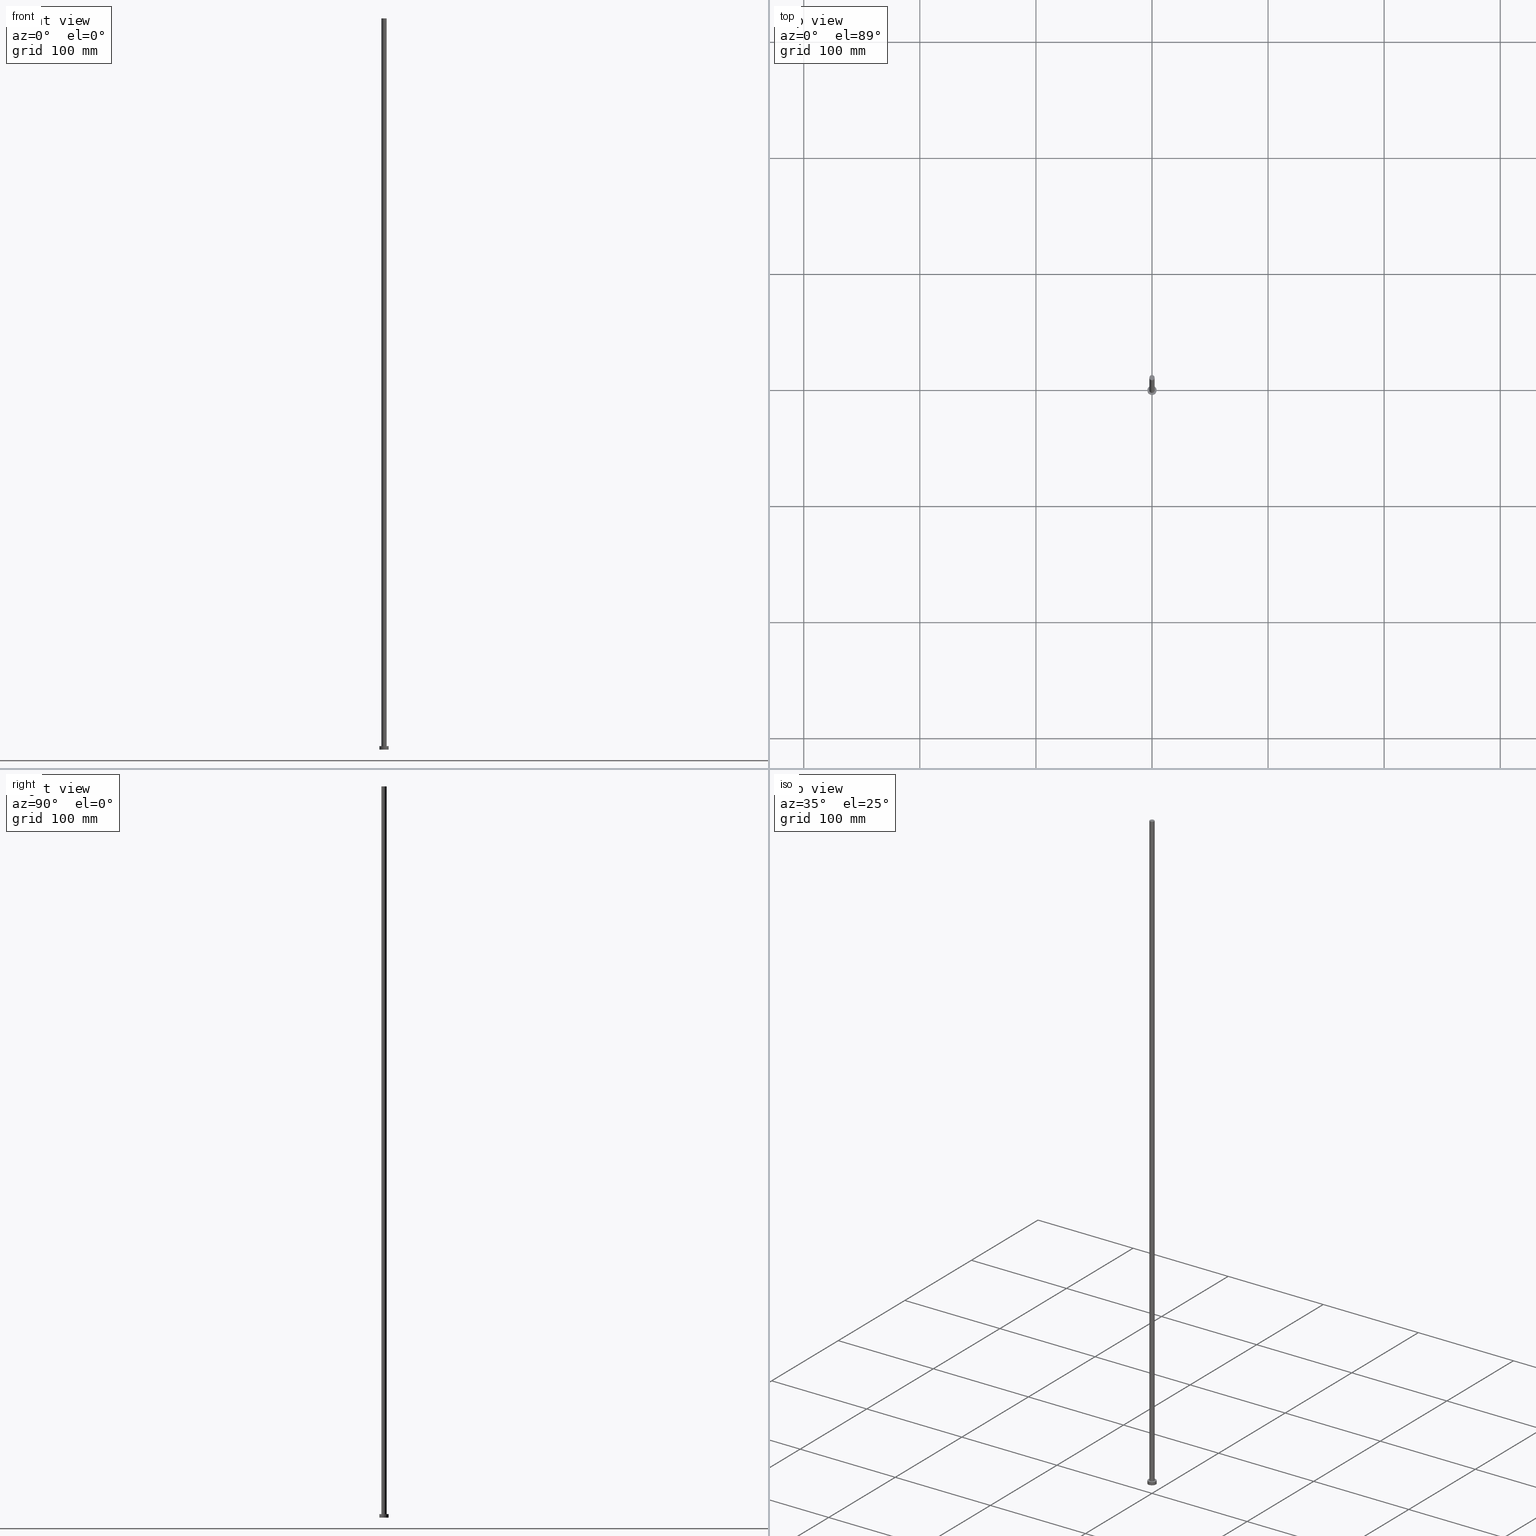
[diagram: canonical four-view strip — front | top / right | iso, engineering-drawing reading convention]
A machine part, canonical four-view strip (front | top / right | iso — engineering-drawing reading convention). The complete STEP part file that produces these views, byte-faithful:
ISO-10303-21;
HEADER;
FILE_DESCRIPTION (( 'STEP AP203' ),
    '1' );
FILE_NAME ('1215.STEP',
    '2023-02-12T12:32:18',
    ( '' ),
    ( '' ),
    'SwSTEP 2.0',
    'SolidWorks 2019',
    '' );
FILE_SCHEMA (( 'CONFIG_CONTROL_DESIGN' ));
ENDSEC;

DATA;
#1 = DIRECTION ( 'NONE',  ( 0.000000000000000000, 0.000000000000000000, 1.000000000000000000 ) ) ;
#2 = CIRCLE ( 'NONE', #154, 2.250000000000000000 ) ;
#3 = CARTESIAN_POINT ( 'NONE',  ( 0.000000000000000000, 0.000000000000000000, 630.0000000000000000 ) ) ;
#4 = APPLICATION_CONTEXT ( 'configuration controlled 3d designs of mechanical parts and assemblies' ) ;
#5 = ORIENTED_EDGE ( 'NONE', *, *, #18, .F. ) ;
#6 = EDGE_LOOP ( 'NONE', ( #5, #234, #204, #21 ) ) ;
#7 = DATE_TIME_ROLE ( 'creation_date' ) ;
#8 = CC_DESIGN_SECURITY_CLASSIFICATION ( #96, ( #150 ) ) ;
#9 = DIRECTION ( 'NONE',  ( 1.000000000000000000, 0.000000000000000000, 0.000000000000000000 ) ) ;
#10 = DIRECTION ( 'NONE',  ( 1.000000000000000000, 0.000000000000000000, 0.000000000000000000 ) ) ;
#11 = EDGE_CURVE ( 'NONE', #79, #48, #99, .T. ) ;
#12 = DIRECTION ( 'NONE',  ( 0.000000000000000000, 0.000000000000000000, 1.000000000000000000 ) ) ;
#13 = CARTESIAN_POINT ( 'NONE',  ( 0.000000000000000000, 0.000000000000000000, 3.000000000000000000 ) ) ;
#14 = LINE ( 'NONE', #176, #188 ) ;
#15 = ORIENTED_EDGE ( 'NONE', *, *, #117, .T. ) ;
#16 = CARTESIAN_POINT ( 'NONE',  ( 0.000000000000000000, 0.000000000000000000, 630.0000000000000000 ) ) ;
#17 = MANIFOLD_SOLID_BREP ( 'P�idat vysunut�m3', #90 ) ;
#18 = EDGE_CURVE ( 'NONE', #79, #158, #14, .T. ) ;
#19 = DIRECTION ( 'NONE',  ( 1.000000000000000000, 0.000000000000000000, 0.000000000000000000 ) ) ;
#20 = FACE_OUTER_BOUND ( 'NONE', #69, .T. ) ;
#21 = ORIENTED_EDGE ( 'NONE', *, *, #28, .T. ) ;
#22 = ORIENTED_EDGE ( 'NONE', *, *, #18, .T. ) ;
#23 = PERSON_AND_ORGANIZATION ( #107, #104 ) ;
#24 = ORIENTED_EDGE ( 'NONE', *, *, #63, .T. ) ;
#25 = AXIS2_PLACEMENT_3D ( 'NONE', #67, #146, #223 ) ;
#26 =( NAMED_UNIT ( * ) SI_UNIT ( $, .STERADIAN. ) SOLID_ANGLE_UNIT ( ) );
#27 = APPROVAL_STATUS ( 'not_yet_approved' ) ;
#28 = EDGE_CURVE ( 'NONE', #227, #158, #83, .T. ) ;
#29 = DATE_AND_TIME ( #230, #190 ) ;
#30 = EDGE_CURVE ( 'NONE', #131, #255, #2, .T. ) ;
#31 = PERSON_AND_ORGANIZATION_ROLE ( 'classification_officer' ) ;
#32 = FACE_OUTER_BOUND ( 'NONE', #201, .T. ) ;
#33 =( GEOMETRIC_REPRESENTATION_CONTEXT ( 3 ) GLOBAL_UNCERTAINTY_ASSIGNED_CONTEXT ( ( #235 ) ) GLOBAL_UNIT_ASSIGNED_CONTEXT ( ( #68, #47, #26 ) ) REPRESENTATION_CONTEXT ( 'NONE', 'WORKASPACE' ) );
#34 = APPROVAL_STATUS ( 'not_yet_approved' ) ;
#35 = CARTESIAN_POINT ( 'NONE',  ( -4.000000000000000000, 0.000000000000000000, 3.000000000000000000 ) ) ;
#36 = COORDINATED_UNIVERSAL_TIME_OFFSET ( 1, 0, .AHEAD. ) ;
#37 = ORIENTED_EDGE ( 'NONE', *, *, #251, .T. ) ;
#38 = CARTESIAN_POINT ( 'NONE',  ( 0.000000000000000000, 0.000000000000000000, 630.0000000000000000 ) ) ;
#39 = CARTESIAN_POINT ( 'NONE',  ( 0.000000000000000000, 0.000000000000000000, 3.000000000000000000 ) ) ;
#40 = DIRECTION ( 'NONE',  ( 1.000000000000000000, 0.000000000000000000, -0.000000000000000000 ) ) ;
#41 = ADVANCED_BREP_SHAPE_REPRESENTATION ( '1215', ( #17, #214 ), #33 ) ;
#42 = LINE ( 'NONE', #35, #240 ) ;
#43 = EDGE_LOOP ( 'NONE', ( #110, #22, #15, #114 ) ) ;
#44 = APPROVAL ( #27, 'NEUR�EN�' ) ;
#45 = CALENDAR_DATE ( 2023, 12, 2 ) ;
#46 = AXIS2_PLACEMENT_3D ( 'NONE', #39, #220, #194 ) ;
#47 =( NAMED_UNIT ( * ) PLANE_ANGLE_UNIT ( ) SI_UNIT ( $, .RADIAN. ) );
#48 = VERTEX_POINT ( 'NONE', #218 ) ;
#49 = AXIS2_PLACEMENT_3D ( 'NONE', #38, #12, #55 ) ;
#50 = ORIENTED_EDGE ( 'NONE', *, *, #162, .T. ) ;
#51 = SECURITY_CLASSIFICATION_LEVEL ( 'unclassified' ) ;
#52 = APPROVAL_STATUS ( 'not_yet_approved' ) ;
#53 = APPROVAL_DATE_TIME ( #29, #138 ) ;
#54 = ADVANCED_FACE ( 'NONE', ( #124 ), #197, .T. ) ;
#55 = DIRECTION ( 'NONE',  ( 1.000000000000000000, 0.000000000000000000, -0.000000000000000000 ) ) ;
#56 = CIRCLE ( 'NONE', #143, 2.250000000000000000 ) ;
#57 = APPROVAL_PERSON_ORGANIZATION ( #89, #44, #168 ) ;
#58 = ORIENTED_EDGE ( 'NONE', *, *, #11, .T. ) ;
#59 = ORIENTED_EDGE ( 'NONE', *, *, #189, .F. ) ;
#60 = DIRECTION ( 'NONE',  ( 0.000000000000000000, 0.000000000000000000, 1.000000000000000000 ) ) ;
#61 = EDGE_LOOP ( 'NONE', ( #59, #116, #179, #37 ) ) ;
#62 = DIRECTION ( 'NONE',  ( -1.000000000000000000, 0.000000000000000000, 0.000000000000000000 ) ) ;
#63 = EDGE_CURVE ( 'NONE', #255, #131, #56, .T. ) ;
#64 = CARTESIAN_POINT ( 'NONE',  ( -2.250000000000000000, 0.000000000000000000, 3.000000000000000000 ) ) ;
#65 = DIRECTION ( 'NONE',  ( 1.000000000000000000, 0.000000000000000000, 0.000000000000000000 ) ) ;
#66 = CARTESIAN_POINT ( 'NONE',  ( 0.000000000000000000, 0.000000000000000000, 630.0000000000000000 ) ) ;
#67 = CARTESIAN_POINT ( 'NONE',  ( 0.000000000000000000, 0.000000000000000000, 0.000000000000000000 ) ) ;
#68 =( LENGTH_UNIT ( ) NAMED_UNIT ( * ) SI_UNIT ( .MILLI., .METRE. ) );
#69 = EDGE_LOOP ( 'NONE', ( #50, #58 ) ) ;
#70 = APPROVAL_DATE_TIME ( #93, #44 ) ;
#71 = CIRCLE ( 'NONE', #224, 2.250000000000000000 ) ;
#72 = FACE_OUTER_BOUND ( 'NONE', #43, .T. ) ;
#73 = CYLINDRICAL_SURFACE ( 'NONE', #84, 2.250000000000000000 ) ;
#74 = VECTOR ( 'NONE', #180, 1000.000000000000000 ) ;
#75 = LOCAL_TIME ( 13, 32, 18.00000000000000000, #172 ) ;
#76 = DIRECTION ( 'NONE',  ( 1.000000000000000000, 0.000000000000000000, 0.000000000000000000 ) ) ;
#77 = CARTESIAN_POINT ( 'NONE',  ( 2.250000000000000000, 2.755455298081544285E-16, 3.000000000000000000 ) ) ;
#78 = ADVANCED_FACE ( 'NONE', ( #85 ), #127, .F. ) ;
#79 = VERTEX_POINT ( 'NONE', #144 ) ;
#80 = PRODUCT_DEFINITION_SHAPE ( 'NONE', 'NONE',  #92 ) ;
#81 = CYLINDRICAL_SURFACE ( 'NONE', #210, 4.000000000000000000 ) ;
#82 = LINE ( 'NONE', #109, #74 ) ;
#83 = CIRCLE ( 'NONE', #228, 4.000000000000000000 ) ;
#84 = AXIS2_PLACEMENT_3D ( 'NONE', #66, #139, #145 ) ;
#85 = FACE_OUTER_BOUND ( 'NONE', #159, .T. ) ;
#86 = PERSON_AND_ORGANIZATION ( #107, #104 ) ;
#87 = CC_DESIGN_DATE_AND_TIME_ASSIGNMENT ( #174, #137, ( #96 ) ) ;
#88 = ORIENTED_EDGE ( 'NONE', *, *, #252, .F. ) ;
#89 = PERSON_AND_ORGANIZATION ( #107, #104 ) ;
#90 = CLOSED_SHELL ( 'NONE', ( #198, #242, #98, #148, #78, #54, #209 ) ) ;
#91 = EDGE_LOOP ( 'NONE', ( #205, #161, #212, #88 ) ) ;
#92 = PRODUCT_DEFINITION ( 'NEZN�M�', '', #150, #151 ) ;
#93 = DATE_AND_TIME ( #170, #208 ) ;
#94 = CALENDAR_DATE ( 2023, 12, 2 ) ;
#95 = AXIS2_PLACEMENT_3D ( 'NONE', #238, #60, #126 ) ;
#96 = SECURITY_CLASSIFICATION ( '', '', #51 ) ;
#97 = CALENDAR_DATE ( 2023, 12, 2 ) ;
#98 = ADVANCED_FACE ( 'NONE', ( #125 ), #81, .T. ) ;
#99 = CIRCLE ( 'NONE', #46, 4.000000000000000000 ) ;
#100 = APPROVAL ( #52, 'NEUR�EN�' ) ;
#101 = PERSON_AND_ORGANIZATION ( #107, #104 ) ;
#102 = CARTESIAN_POINT ( 'NONE',  ( -4.000000000000000000, 0.000000000000000000, 0.000000000000000000 ) ) ;
#103 = ORIENTED_EDGE ( 'NONE', *, *, #117, .F. ) ;
#104 = ORGANIZATION ( 'NEUR�EN�', 'NEUR�EN�', '' ) ;
#105 = DIRECTION ( 'NONE',  ( -0.000000000000000000, -0.000000000000000000, -1.000000000000000000 ) ) ;
#106 = CARTESIAN_POINT ( 'NONE',  ( 2.250000000000000000, 2.755455298081544285E-16, 630.0000000000000000 ) ) ;
#107 = PERSON ( 'NEUR�EN�', 'NEUR�EN�', 'NEUR�EN�', ('NEUR�EN�'), ('NEUR�EN�'), ('NEUR�EN�') ) ;
#108 = CARTESIAN_POINT ( 'NONE',  ( 0.000000000000000000, 0.000000000000000000, 0.000000000000000000 ) ) ;
#109 = CARTESIAN_POINT ( 'NONE',  ( 2.250000000000000000, 2.755455298081544285E-16, 630.0000000000000000 ) ) ;
#110 = ORIENTED_EDGE ( 'NONE', *, *, #11, .F. ) ;
#111 = DIRECTION ( 'NONE',  ( -0.000000000000000000, -0.000000000000000000, -1.000000000000000000 ) ) ;
#112 = EDGE_CURVE ( 'NONE', #196, #177, #121, .T. ) ;
#113 = AXIS2_PLACEMENT_3D ( 'NONE', #108, #1, #40 ) ;
#114 = ORIENTED_EDGE ( 'NONE', *, *, #120, .F. ) ;
#115 = CARTESIAN_POINT ( 'NONE',  ( 0.000000000000000000, 0.000000000000000000, 0.000000000000000000 ) ) ;
#116 = ORIENTED_EDGE ( 'NONE', *, *, #63, .F. ) ;
#117 = EDGE_CURVE ( 'NONE', #158, #227, #186, .T. ) ;
#118 = APPLICATION_PROTOCOL_DEFINITION ( 'international standard', 'config_control_design', 1994, #231 ) ;
#119 = VECTOR ( 'NONE', #111, 1000.000000000000000 ) ;
#120 = EDGE_CURVE ( 'NONE', #48, #227, #42, .T. ) ;
#121 = CIRCLE ( 'NONE', #249, 2.250000000000000000 ) ;
#122 = FACE_OUTER_BOUND ( 'NONE', #91, .T. ) ;
#123 = DIRECTION ( 'NONE',  ( -0.000000000000000000, -0.000000000000000000, -1.000000000000000000 ) ) ;
#124 = FACE_OUTER_BOUND ( 'NONE', #61, .T. ) ;
#125 = FACE_OUTER_BOUND ( 'NONE', #6, .T. ) ;
#126 = DIRECTION ( 'NONE',  ( 1.000000000000000000, 0.000000000000000000, 0.000000000000000000 ) ) ;
#127 = PLANE ( 'NONE',  #113 ) ;
#128 = ORIENTED_EDGE ( 'NONE', *, *, #251, .F. ) ;
#129 = APPROVAL_DATE_TIME ( #243, #100 ) ;
#130 = AXIS2_PLACEMENT_3D ( 'NONE', #216, #123, #192 ) ;
#131 = VERTEX_POINT ( 'NONE', #106 ) ;
#132 = AXIS2_PLACEMENT_3D ( 'NONE', #200, #160, #178 ) ;
#133 = APPLICATION_PROTOCOL_DEFINITION ( 'international standard', 'config_control_design', 1994, #4 ) ;
#134 = LOCAL_TIME ( 13, 32, 18.00000000000000000, #147 ) ;
#135 = PRODUCT_RELATED_PRODUCT_CATEGORY ( 'detail', '', ( #183 ) ) ;
#136 = APPROVAL_ROLE ( '' ) ;
#137 = DATE_TIME_ROLE ( 'classification_date' ) ;
#138 = APPROVAL ( #34, 'NEUR�EN�' ) ;
#139 = DIRECTION ( 'NONE',  ( -0.000000000000000000, -0.000000000000000000, -1.000000000000000000 ) ) ;
#140 = DIRECTION ( 'NONE',  ( 1.000000000000000000, 0.000000000000000000, 0.000000000000000000 ) ) ;
#141 = CARTESIAN_POINT ( 'NONE',  ( 4.000000000000000000, 4.898587196589412829E-16, 0.000000000000000000 ) ) ;
#142 = CARTESIAN_POINT ( 'NONE',  ( 0.000000000000000000, 0.000000000000000000, 630.0000000000000000 ) ) ;
#143 = AXIS2_PLACEMENT_3D ( 'NONE', #142, #219, #19 ) ;
#144 = CARTESIAN_POINT ( 'NONE',  ( 4.000000000000000000, 4.898587196589412829E-16, 3.000000000000000000 ) ) ;
#145 = DIRECTION ( 'NONE',  ( -1.000000000000000000, 0.000000000000000000, 0.000000000000000000 ) ) ;
#146 = DIRECTION ( 'NONE',  ( 0.000000000000000000, 0.000000000000000000, 1.000000000000000000 ) ) ;
#147 = COORDINATED_UNIVERSAL_TIME_OFFSET ( 1, 0, .AHEAD. ) ;
#148 = ADVANCED_FACE ( 'NONE', ( #164, #20 ), #195, .T. ) ;
#149 = ORIENTED_EDGE ( 'NONE', *, *, #28, .F. ) ;
#150 = PRODUCT_DEFINITION_FORMATION_WITH_SPECIFIED_SOURCE ( 'LIBOVOLN�', '', #183, .NOT_KNOWN. ) ;
#151 = DESIGN_CONTEXT ( 'detailed design', #4, 'design' ) ;
#152 = LOCAL_TIME ( 13, 32, 18.00000000000000000, #184 ) ;
#153 = PERSON_AND_ORGANIZATION_ROLE ( 'design_supplier' ) ;
#154 = AXIS2_PLACEMENT_3D ( 'NONE', #3, #199, #140 ) ;
#155 = CC_DESIGN_PERSON_AND_ORGANIZATION_ASSIGNMENT ( #229, #206, ( #92 ) ) ;
#156 = CC_DESIGN_PERSON_AND_ORGANIZATION_ASSIGNMENT ( #215, #31, ( #96 ) ) ;
#157 = DIRECTION ( 'NONE',  ( 0.000000000000000000, 0.000000000000000000, 1.000000000000000000 ) ) ;
#158 = VERTEX_POINT ( 'NONE', #141 ) ;
#159 = EDGE_LOOP ( 'NONE', ( #149, #103 ) ) ;
#160 = DIRECTION ( 'NONE',  ( 0.000000000000000000, 0.000000000000000000, 1.000000000000000000 ) ) ;
#161 = ORIENTED_EDGE ( 'NONE', *, *, #189, .T. ) ;
#162 = EDGE_CURVE ( 'NONE', #48, #79, #207, .T. ) ;
#163 = DIRECTION ( 'NONE',  ( -0.000000000000000000, -0.000000000000000000, -1.000000000000000000 ) ) ;
#164 = FACE_BOUND ( 'NONE', #169, .T. ) ;
#165 = CC_DESIGN_APPROVAL ( #100, ( #92 ) ) ;
#166 = CARTESIAN_POINT ( 'NONE',  ( 0.000000000000000000, 0.000000000000000000, 3.000000000000000000 ) ) ;
#167 = CARTESIAN_POINT ( 'NONE',  ( -2.250000000000000000, 0.000000000000000000, 630.0000000000000000 ) ) ;
#168 = APPROVAL_ROLE ( '' ) ;
#169 = EDGE_LOOP ( 'NONE', ( #128, #217 ) ) ;
#170 = CALENDAR_DATE ( 2023, 12, 2 ) ;
#171 = LINE ( 'NONE', #167, #119 ) ;
#172 = COORDINATED_UNIVERSAL_TIME_OFFSET ( 1, 0, .AHEAD. ) ;
#173 = AXIS2_PLACEMENT_3D ( 'NONE', #16, #105, #62 ) ;
#174 = DATE_AND_TIME ( #97, #75 ) ;
#175 = ORIENTED_EDGE ( 'NONE', *, *, #30, .T. ) ;
#176 = CARTESIAN_POINT ( 'NONE',  ( 4.000000000000000000, 4.898587196589412829E-16, 3.000000000000000000 ) ) ;
#177 = VERTEX_POINT ( 'NONE', #64 ) ;
#178 = DIRECTION ( 'NONE',  ( 1.000000000000000000, 0.000000000000000000, -0.000000000000000000 ) ) ;
#179 = ORIENTED_EDGE ( 'NONE', *, *, #252, .T. ) ;
#180 = DIRECTION ( 'NONE',  ( -0.000000000000000000, -0.000000000000000000, -1.000000000000000000 ) ) ;
#181 = DIRECTION ( 'NONE',  ( 0.000000000000000000, 0.000000000000000000, 1.000000000000000000 ) ) ;
#182 = CC_DESIGN_DATE_AND_TIME_ASSIGNMENT ( #247, #7, ( #92 ) ) ;
#183 = PRODUCT ( '1215', '1215', '', ( #213 ) ) ;
#184 = COORDINATED_UNIVERSAL_TIME_OFFSET ( 1, 0, .AHEAD. ) ;
#185 = PERSON_AND_ORGANIZATION ( #107, #104 ) ;
#186 = CIRCLE ( 'NONE', #25, 4.000000000000000000 ) ;
#187 = PERSON_AND_ORGANIZATION_ROLE ( 'design_owner' ) ;
#188 = VECTOR ( 'NONE', #254, 1000.000000000000000 ) ;
#189 = EDGE_CURVE ( 'NONE', #131, #196, #82, .T. ) ;
#190 = LOCAL_TIME ( 13, 32, 18.00000000000000000, #36 ) ;
#191 = PLANE ( 'NONE',  #49 ) ;
#192 = DIRECTION ( 'NONE',  ( -1.000000000000000000, 0.000000000000000000, 0.000000000000000000 ) ) ;
#193 = SHAPE_DEFINITION_REPRESENTATION ( #80, #41 ) ;
#194 = DIRECTION ( 'NONE',  ( 1.000000000000000000, 0.000000000000000000, 0.000000000000000000 ) ) ;
#195 = PLANE ( 'NONE',  #132 ) ;
#196 = VERTEX_POINT ( 'NONE', #77 ) ;
#197 = CYLINDRICAL_SURFACE ( 'NONE', #173, 2.250000000000000000 ) ;
#198 = ADVANCED_FACE ( 'NONE', ( #122 ), #73, .T. ) ;
#199 = DIRECTION ( 'NONE',  ( 0.000000000000000000, 0.000000000000000000, 1.000000000000000000 ) ) ;
#200 = CARTESIAN_POINT ( 'NONE',  ( 0.000000000000000000, 0.000000000000000000, 3.000000000000000000 ) ) ;
#201 = EDGE_LOOP ( 'NONE', ( #24, #175 ) ) ;
#202 = DIRECTION ( 'NONE',  ( -1.000000000000000000, 0.000000000000000000, 0.000000000000000000 ) ) ;
#203 = DIRECTION ( 'NONE',  ( 0.000000000000000000, 0.000000000000000000, 1.000000000000000000 ) ) ;
#204 = ORIENTED_EDGE ( 'NONE', *, *, #120, .T. ) ;
#205 = ORIENTED_EDGE ( 'NONE', *, *, #30, .F. ) ;
#206 = PERSON_AND_ORGANIZATION_ROLE ( 'creator' ) ;
#207 = CIRCLE ( 'NONE', #95, 4.000000000000000000 ) ;
#208 = LOCAL_TIME ( 13, 32, 18.00000000000000000, #250 ) ;
#209 = ADVANCED_FACE ( 'NONE', ( #32 ), #191, .T. ) ;
#210 = AXIS2_PLACEMENT_3D ( 'NONE', #166, #163, #202 ) ;
#211 = PERSON_AND_ORGANIZATION_ROLE ( 'creator' ) ;
#212 = ORIENTED_EDGE ( 'NONE', *, *, #112, .T. ) ;
#213 = MECHANICAL_CONTEXT ( 'NONE', #231, 'mechanical' ) ;
#214 = AXIS2_PLACEMENT_3D ( 'NONE', #115, #203, #9 ) ;
#215 = PERSON_AND_ORGANIZATION ( #107, #104 ) ;
#216 = CARTESIAN_POINT ( 'NONE',  ( 0.000000000000000000, 0.000000000000000000, 3.000000000000000000 ) ) ;
#217 = ORIENTED_EDGE ( 'NONE', *, *, #112, .F. ) ;
#218 = CARTESIAN_POINT ( 'NONE',  ( -4.000000000000000000, 0.000000000000000000, 3.000000000000000000 ) ) ;
#219 = DIRECTION ( 'NONE',  ( 0.000000000000000000, 0.000000000000000000, 1.000000000000000000 ) ) ;
#220 = DIRECTION ( 'NONE',  ( 0.000000000000000000, 0.000000000000000000, 1.000000000000000000 ) ) ;
#221 = APPROVAL_ROLE ( '' ) ;
#222 = CC_DESIGN_PERSON_AND_ORGANIZATION_ASSIGNMENT ( #244, #211, ( #150 ) ) ;
#223 = DIRECTION ( 'NONE',  ( 1.000000000000000000, 0.000000000000000000, 0.000000000000000000 ) ) ;
#224 = AXIS2_PLACEMENT_3D ( 'NONE', #13, #157, #10 ) ;
#225 = APPROVAL_PERSON_ORGANIZATION ( #101, #138, #136 ) ;
#226 = CARTESIAN_POINT ( 'NONE',  ( -2.250000000000000000, 0.000000000000000000, 630.0000000000000000 ) ) ;
#227 = VERTEX_POINT ( 'NONE', #102 ) ;
#228 = AXIS2_PLACEMENT_3D ( 'NONE', #237, #181, #76 ) ;
#229 = PERSON_AND_ORGANIZATION ( #107, #104 ) ;
#230 = CALENDAR_DATE ( 2023, 12, 2 ) ;
#231 = APPLICATION_CONTEXT ( 'configuration controlled 3d designs of mechanical parts and assemblies' ) ;
#232 = CYLINDRICAL_SURFACE ( 'NONE', #130, 4.000000000000000000 ) ;
#233 = CC_DESIGN_APPROVAL ( #44, ( #150 ) ) ;
#234 = ORIENTED_EDGE ( 'NONE', *, *, #162, .F. ) ;
#235 = UNCERTAINTY_MEASURE_WITH_UNIT (LENGTH_MEASURE( 1.000000000000000082E-05 ), #68, 'distance_accuracy_value', 'NONE');
#236 = CC_DESIGN_PERSON_AND_ORGANIZATION_ASSIGNMENT ( #185, #153, ( #150 ) ) ;
#237 = CARTESIAN_POINT ( 'NONE',  ( 0.000000000000000000, 0.000000000000000000, 0.000000000000000000 ) ) ;
#238 = CARTESIAN_POINT ( 'NONE',  ( 0.000000000000000000, 0.000000000000000000, 3.000000000000000000 ) ) ;
#239 = CARTESIAN_POINT ( 'NONE',  ( 0.000000000000000000, 0.000000000000000000, 3.000000000000000000 ) ) ;
#240 = VECTOR ( 'NONE', #253, 1000.000000000000000 ) ;
#241 = DIRECTION ( 'NONE',  ( 0.000000000000000000, 0.000000000000000000, 1.000000000000000000 ) ) ;
#242 = ADVANCED_FACE ( 'NONE', ( #72 ), #232, .T. ) ;
#243 = DATE_AND_TIME ( #45, #134 ) ;
#244 = PERSON_AND_ORGANIZATION ( #107, #104 ) ;
#245 = APPROVAL_PERSON_ORGANIZATION ( #23, #100, #221 ) ;
#246 = CC_DESIGN_APPROVAL ( #138, ( #96 ) ) ;
#247 = DATE_AND_TIME ( #94, #152 ) ;
#248 = CC_DESIGN_PERSON_AND_ORGANIZATION_ASSIGNMENT ( #86, #187, ( #183 ) ) ;
#249 = AXIS2_PLACEMENT_3D ( 'NONE', #239, #241, #65 ) ;
#250 = COORDINATED_UNIVERSAL_TIME_OFFSET ( 1, 0, .AHEAD. ) ;
#251 = EDGE_CURVE ( 'NONE', #177, #196, #71, .T. ) ;
#252 = EDGE_CURVE ( 'NONE', #255, #177, #171, .T. ) ;
#253 = DIRECTION ( 'NONE',  ( -0.000000000000000000, -0.000000000000000000, -1.000000000000000000 ) ) ;
#254 = DIRECTION ( 'NONE',  ( -0.000000000000000000, -0.000000000000000000, -1.000000000000000000 ) ) ;
#255 = VERTEX_POINT ( 'NONE', #226 ) ;
ENDSEC;
END-ISO-10303-21;
